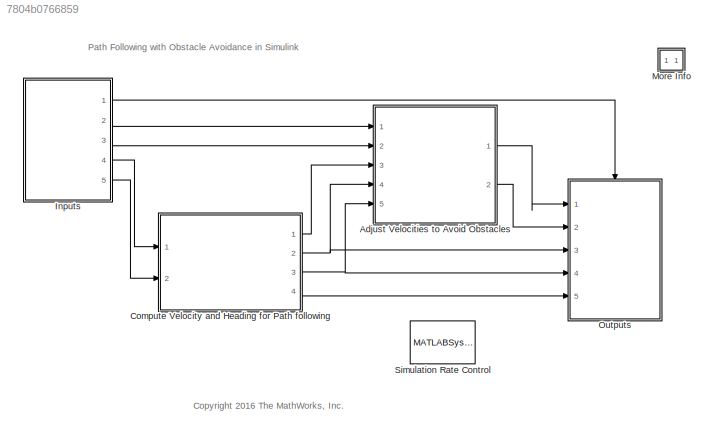
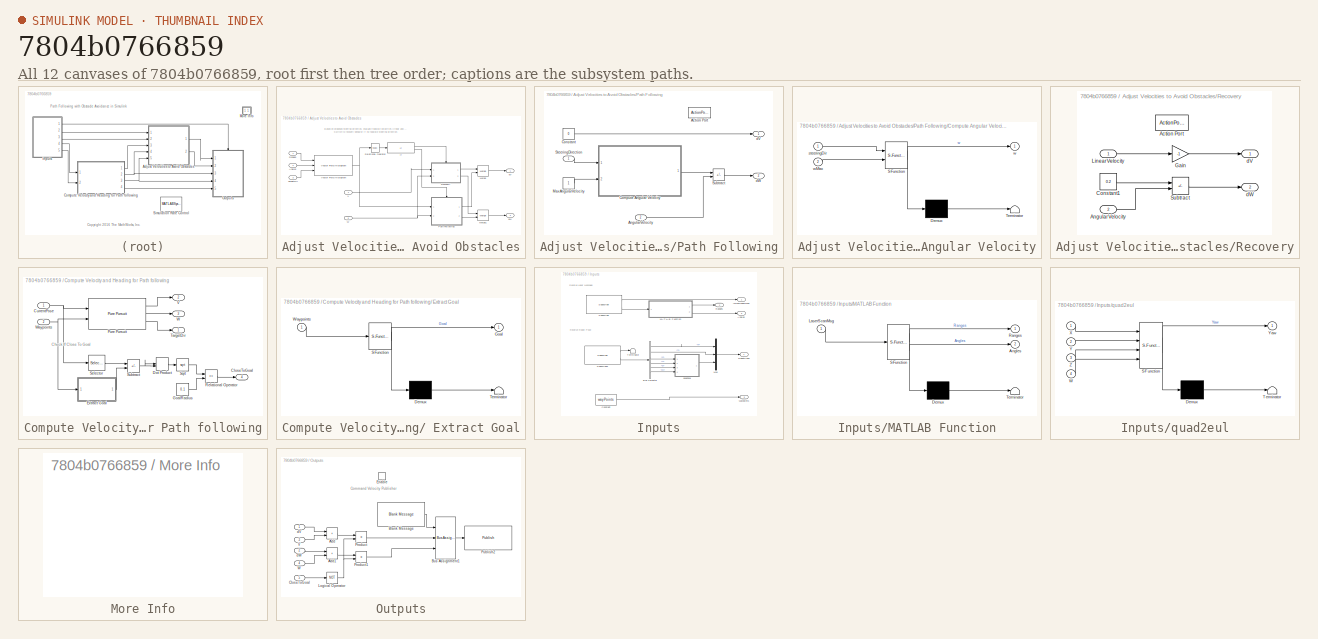
[diagram: thumbnail index - all 12 canvases of the model, root first then tree order]
MODEL slx_7804b0766859
KIND model
CONFIG AbsTol = auto
CONFIG EnableMultiTasking = on
CONFIG FixedStep = 0.01
CONFIG MaxStep = auto
CONFIG MinStep = auto
CONFIG RelTol = 1e-3
CONFIG SampleTimeConstraint = Unconstrained
CONFIG SolverName = VariableStepAuto
CONFIG StartTime = 0.0
CONFIG StopTime = inf
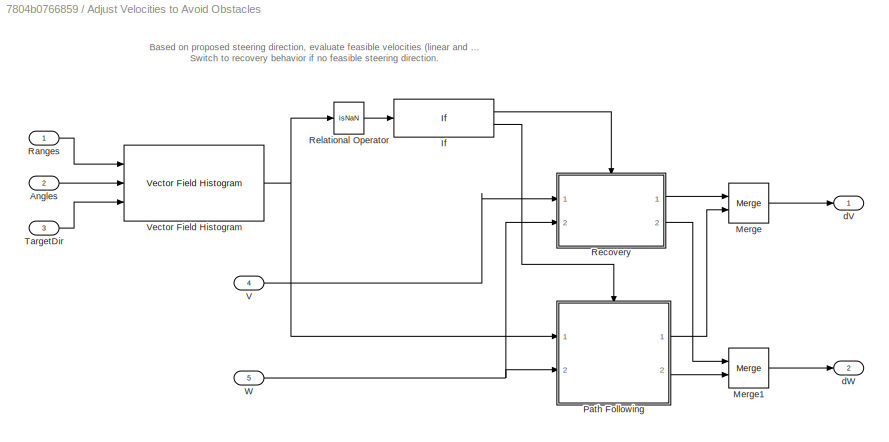
BLOCK [SubSystem] Adjust Velocities to Avoid Obstacles
  Ports = [5, 2]
  RequestExecContextInheritance = off
BLOCK [Inport] Adjust Velocities to Avoid Obstacles/Angles
  Port = 2
BLOCK [If] Adjust Velocities to Avoid Obstacles/If
  IfExpression = u1 == 1
  Ports = [1, 2]
BLOCK [Merge] Adjust Velocities to Avoid Obstacles/Merge
  Ports = [2, 1]
BLOCK [Merge] Adjust Velocities to Avoid Obstacles/Merge1
  Ports = [2, 1]
BLOCK [SubSystem] Adjust Velocities to Avoid Obstacles/Path Following
  Ports = [2, 2, 0, 0, 0, 0, 0, 1]
  RequestExecContextInheritance = off
  TreatAsAtomicUnit = on
BLOCK [ActionPort] Adjust Velocities to Avoid Obstacles/Path Following/Action Port
  ActionPortLabel = else
BLOCK [Inport] Adjust Velocities to Avoid Obstacles/Path Following/AngularVelocity
  Port = 2
BLOCK [SubSystem] Adjust Velocities to Avoid Obstacles/Path Following/Compute Angular Velocity
  ErrorFcn = Stateflow.Translate.translate
  PermitHierarchicalResolution = ExplicitOnly
  Ports = [2, 1]
  RequestExecContextInheritance = off
  SFBlockType = MATLAB Function
  TreatAsAtomicUnit = on
BLOCK [Demux] Adjust Velocities to Avoid Obstacles/Path Following/Compute Angular Velocity/ Demux 
  Outputs = 1
  Ports = [1, 1]
BLOCK [S-Function] Adjust Velocities to Avoid Obstacles/Path Following/Compute Angular Velocity/ SFunction 
  EnableBusSupport = on
  FunctionName = sf_sfun
  PortCounts = [2 2]
  Ports = [2, 2]
  SFcnIsStateOwnerBlock = off
  SFunctionDeploymentMode = off
  Tag = Stateflow S-Function 8
BLOCK [Terminator] Adjust Velocities to Avoid Obstacles/Path Following/Compute Angular Velocity/ Terminator 
BLOCK [Inport] Adjust Velocities to Avoid Obstacles/Path Following/Compute Angular Velocity/steeringDir
BLOCK [Outport] Adjust Velocities to Avoid Obstacles/Path Following/Compute Angular Velocity/w
  VectorParamsAs1DForOutWhenUnconnected = off
BLOCK [Inport] Adjust Velocities to Avoid Obstacles/Path Following/Compute Angular Velocity/wMax
  Port = 2
BLOCK [Constant] Adjust Velocities to Avoid Obstacles/Path Following/Constant
  Value = 0
BLOCK [Constant] Adjust Velocities to Avoid Obstacles/Path Following/MaxAngularVelocity
BLOCK [Inport] Adjust Velocities to Avoid Obstacles/Path Following/SteeringDirection
BLOCK [Sum] Adjust Velocities to Avoid Obstacles/Path Following/Subtract
  IconShape = rectangular
  Inputs = +-
  Ports = [2, 1]
BLOCK [Outport] Adjust Velocities to Avoid Obstacles/Path Following/dV
  VectorParamsAs1DForOutWhenUnconnected = off
BLOCK [Outport] Adjust Velocities to Avoid Obstacles/Path Following/dW
  Port = 2
  VectorParamsAs1DForOutWhenUnconnected = off
BLOCK [Inport] Adjust Velocities to Avoid Obstacles/Ranges
BLOCK [SubSystem] Adjust Velocities to Avoid Obstacles/Recovery
  Ports = [2, 2, 0, 0, 0, 0, 0, 1]
  RequestExecContextInheritance = off
  TreatAsAtomicUnit = on
BLOCK [ActionPort] Adjust Velocities to Avoid Obstacles/Recovery/Action Port
  ActionPortLabel = if(u1 == 1)
BLOCK [Inport] Adjust Velocities to Avoid Obstacles/Recovery/AngularVelocity
  Port = 2
BLOCK [Constant] Adjust Velocities to Avoid Obstacles/Recovery/Constant1
  Value = 0.2
BLOCK [Gain] Adjust Velocities to Avoid Obstacles/Recovery/Gain
  Gain = -1
BLOCK [Inport] Adjust Velocities to Avoid Obstacles/Recovery/LinearVelocity
BLOCK [Sum] Adjust Velocities to Avoid Obstacles/Recovery/Subtract
  IconShape = rectangular
  Inputs = +-
  Ports = [2, 1]
BLOCK [Outport] Adjust Velocities to Avoid Obstacles/Recovery/dV
  VectorParamsAs1DForOutWhenUnconnected = off
BLOCK [Outport] Adjust Velocities to Avoid Obstacles/Recovery/dW
  Port = 2
  VectorParamsAs1DForOutWhenUnconnected = off
BLOCK [RelationalOperator] Adjust Velocities to Avoid Obstacles/Relational Operator
  InputSameDT = off
  Operator = isNaN
  OutDataTypeStr = boolean
  Ports = [1, 1]
  RndMeth = Simplest
BLOCK [Inport] Adjust Velocities to Avoid Obstacles/TargetDir
  Port = 3
BLOCK [Inport] Adjust Velocities to Avoid Obstacles/V
  Port = 4
BLOCK [Reference] Adjust Velocities to Avoid Obstacles/Vector Field Histogram  REF=robotalgslib/Vector Field Histogram
  Ports = [3, 1]
  SourceBlock = robotalgslib/Vector Field Histogram
  SourceProductBaseCode = NV,RO
  SourceType = nav.slalgs.internal.VectorFieldHistogram
BLOCK [Inport] Adjust Velocities to Avoid Obstacles/W
  Port = 5
BLOCK [Outport] Adjust Velocities to Avoid Obstacles/dV
  VectorParamsAs1DForOutWhenUnconnected = off
BLOCK [Outport] Adjust Velocities to Avoid Obstacles/dW
  Port = 2
  VectorParamsAs1DForOutWhenUnconnected = off
BLOCK [SubSystem] Compute Velocity and Heading for Path following
  Ports = [2, 4]
  RequestExecContextInheritance = off
BLOCK [SubSystem] Compute Velocity and Heading for Path following/ Extract Goal
  ErrorFcn = Stateflow.Translate.translate
  PermitHierarchicalResolution = ExplicitOnly
  Ports = [1, 1]
  RequestExecContextInheritance = off
  SFBlockType = MATLAB Function
  TreatAsAtomicUnit = on
BLOCK [Demux] Compute Velocity and Heading for Path following/ Extract Goal/ Demux 
  Outputs = 1
  Ports = [1, 1]
BLOCK [S-Function] Compute Velocity and Heading for Path following/ Extract Goal/ SFunction 
  EnableBusSupport = on
  FunctionName = sf_sfun
  PortCounts = [1 2]
  Ports = [1, 2]
  SFcnIsStateOwnerBlock = off
  SFunctionDeploymentMode = off
  Tag = Stateflow S-Function 7
BLOCK [Terminator] Compute Velocity and Heading for Path following/ Extract Goal/ Terminator 
BLOCK [Outport] Compute Velocity and Heading for Path following/ Extract Goal/Goal
  VectorParamsAs1DForOutWhenUnconnected = off
BLOCK [Inport] Compute Velocity and Heading for Path following/ Extract Goal/Waypoints
BLOCK [Outport] Compute Velocity and Heading for Path following/CloseToGoal
  Port = 4
  VectorParamsAs1DForOutWhenUnconnected = off
BLOCK [Inport] Compute Velocity and Heading for Path following/CurrentPose
BLOCK [DotProduct] Compute Velocity and Heading for Path following/Dot Product
  OutDataTypeStr = Inherit: Inherit via internal rule
BLOCK [Constant] Compute Velocity and Heading for Path following/GoalRadius
  Value = 0.1
BLOCK [Reference] Compute Velocity and Heading for Path following/Pure Pursuit  REF=robotalgslib/Pure Pursuit
  Ports = [2, 3]
  SourceBlock = robotalgslib/Pure Pursuit
  SourceProductBaseCode = NV,RO
  SourceType = nav.slalgs.internal.PurePursuit
BLOCK [RelationalOperator] Compute Velocity and Heading for Path following/Relational Operator
  InputSameDT = off
  Operator = <=
  OutDataTypeStr = boolean
  Ports = [2, 1]
  RndMeth = Simplest
BLOCK [Selector] Compute Velocity and Heading for Path following/Selector
  IndexOptions = Index vector (dialog)
  Indices = [1 2]
  InputPortWidth = 3
  OutputSizes = 1
  Ports = [1, 1]
BLOCK [Sqrt] Compute Velocity and Heading for Path following/Sqrt
BLOCK [Sum] Compute Velocity and Heading for Path following/Subtract
  IconShape = rectangular
  Inputs = +-
  Ports = [2, 1]
BLOCK [Outport] Compute Velocity and Heading for Path following/TargetDir
  VectorParamsAs1DForOutWhenUnconnected = off
BLOCK [Outport] Compute Velocity and Heading for Path following/V
  Port = 2
  VectorParamsAs1DForOutWhenUnconnected = off
BLOCK [Outport] Compute Velocity and Heading for Path following/W
  Port = 3
  VectorParamsAs1DForOutWhenUnconnected = off
BLOCK [Inport] Compute Velocity and Heading for Path following/Waypoints
  Port = 2
BLOCK [SubSystem] Inputs
  Ports = [0, 5]
  RequestExecContextInheritance = off
BLOCK [Outport] Inputs/Angles
  Port = 3
  VectorParamsAs1DForOutWhenUnconnected = off
BLOCK [BusSelector] Inputs/Bus Selector
  OutputSignals = Pose.Pose.Position.X,Pose.Pose.Position.Y,Pose.Pose.Orientation.X,Pose.Pose.Orientation.Y,Pose.Pose.Orientation.Z,Pose.Pose.Orientation.W
  Ports = [1, 6]
BLOCK [Constant] Inputs/Constant
  Value = wayPoints
BLOCK [Outport] Inputs/IsNewLaserMsg
  VectorParamsAs1DForOutWhenUnconnected = off
BLOCK [SubSystem] Inputs/MATLAB Function
  ErrorFcn = Stateflow.Translate.translate
  PermitHierarchicalResolution = ExplicitOnly
  Ports = [1, 2]
  RequestExecContextInheritance = off
  SFBlockType = MATLAB Function
  TreatAsAtomicUnit = on
BLOCK [Demux] Inputs/MATLAB Function/ Demux 
  Outputs = 1
  Ports = [1, 1]
BLOCK [S-Function] Inputs/MATLAB Function/ SFunction 
  EnableBusSupport = on
  FunctionName = sf_sfun
  PortCounts = [1 3]
  Ports = [1, 3]
  SFcnIsStateOwnerBlock = off
  SFunctionDeploymentMode = off
  Tag = Stateflow S-Function 5
BLOCK [Terminator] Inputs/MATLAB Function/ Terminator 
BLOCK [Outport] Inputs/MATLAB Function/Angles
  Port = 2
  VectorParamsAs1DForOutWhenUnconnected = off
BLOCK [Inport] Inputs/MATLAB Function/LaserScanMsg
BLOCK [Outport] Inputs/MATLAB Function/Ranges
  VectorParamsAs1DForOutWhenUnconnected = off
BLOCK [Mux] Inputs/Mux
  DisplayOption = bar
  Inputs = 3
  Ports = [3, 1]
BLOCK [Outport] Inputs/Ranges
  Port = 2
  VectorParamsAs1DForOutWhenUnconnected = off
BLOCK [Outport] Inputs/RobotPose
  Port = 4
  VectorParamsAs1DForOutWhenUnconnected = off
BLOCK [Reference] Inputs/Subscribe  REF=robotlib/Subscribe
  Ports = [0, 2]
  SourceBlock = robotlib/Subscribe
  SourceProductBaseCode = RR
  SourceType = ROS Subscribe
BLOCK [Reference] Inputs/Subscribe1  REF=robotlib/Subscribe
  Ports = [0, 2]
  SourceBlock = robotlib/Subscribe
  SourceProductBaseCode = RR
  SourceType = ROS Subscribe
BLOCK [Terminator] Inputs/Terminator
BLOCK [Outport] Inputs/Waypoints
  Port = 5
  VectorParamsAs1DForOutWhenUnconnected = off
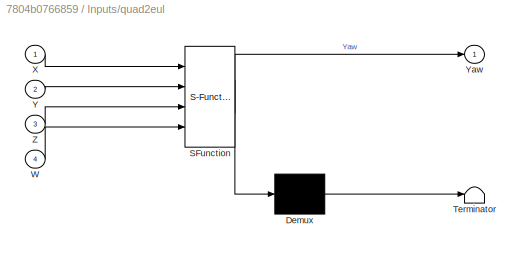
BLOCK [SubSystem] Inputs/quad2eul
  ErrorFcn = Stateflow.Translate.translate
  PermitHierarchicalResolution = ExplicitOnly
  Ports = [4, 1]
  RequestExecContextInheritance = off
  SFBlockType = MATLAB Function
  TreatAsAtomicUnit = on
BLOCK [Demux] Inputs/quad2eul/ Demux 
  Outputs = 1
  Ports = [1, 1]
BLOCK [S-Function] Inputs/quad2eul/ SFunction 
  EnableBusSupport = on
  FunctionName = sf_sfun
  PortCounts = [4 2]
  Ports = [4, 2]
  SFcnIsStateOwnerBlock = off
  SFunctionDeploymentMode = off
  Tag = Stateflow S-Function 1
BLOCK [Terminator] Inputs/quad2eul/ Terminator 
BLOCK [Inport] Inputs/quad2eul/W
  Port = 4
BLOCK [Inport] Inputs/quad2eul/X
BLOCK [Inport] Inputs/quad2eul/Y
  Port = 2
BLOCK [Outport] Inputs/quad2eul/Yaw
  VectorParamsAs1DForOutWhenUnconnected = off
BLOCK [Inport] Inputs/quad2eul/Z
  Port = 3
BLOCK [SubSystem] More Info
  OpenFcn = showdemo(bdroot(gcb))
  Ports = []
  RequestExecContextInheritance = off
BLOCK [SubSystem] Outputs
  Ports = [5, 0, 1]
  RequestExecContextInheritance = off
BLOCK [Sum] Outputs/Add
  IconShape = rectangular
  Ports = [2, 1]
BLOCK [Sum] Outputs/Add1
  IconShape = rectangular
  Ports = [2, 1]
BLOCK [Reference] Outputs/Blank Message  REF=robotlib/Blank Message
  Ports = [0, 1]
  SourceBlock = robotlib/Blank Message
  SourceProductBaseCode = RR
  SourceType = ROS Blank Message
BLOCK [BusAssignment] Outputs/Bus Assignment1
  AssignedSignals = Linear.X,Angular.Z
  DialogController = Simulink.DDGSource_BusAssignment
  Ports = [3, 1]
BLOCK [Inport] Outputs/CloseToGoal
  Port = 5
BLOCK [EnablePort] Outputs/Enable
  Ports = []
BLOCK [Logic] Outputs/Logical Operator
  AllPortsSameDT = off
  Operator = NOT
  OutDataTypeStr = boolean
  Ports = [1, 1]
BLOCK [Product] Outputs/Product
  Ports = [2, 1]
BLOCK [Product] Outputs/Product1
  Ports = [2, 1]
BLOCK [Reference] Outputs/Publish2  REF=robotlib/Publish
  AttributesFormatString = %<messageType>
  Ports = [1]
  SourceBlock = robotlib/Publish
  SourceProductBaseCode = RR
  SourceType = ROS Publish
BLOCK [Inport] Outputs/V
  Port = 3
BLOCK [Inport] Outputs/W
  Port = 4
BLOCK [Inport] Outputs/dV
BLOCK [Inport] Outputs/dW
  Port = 2
BLOCK [MATLABSystem] Simulation Rate Control
  MaskDisplay = disp('Rate Control');
  MaskType = ExampleHelperSimulationRateControl
  Ports = []
  SampleTime = 0.02
  System = ExampleHelperSimulationRateControl
ANNOTATION (root): Path Following with Obstacle Avoidance in Simulink
ANNOTATION (root): <copyright redacted>
ANNOTATION Adjust Velocities to Avoid Obstacles: Based on proposed steering direction, evaluate feasible velocities (linear and angular). Switch to recovery behavior if no feasible steering direction.
ANNOTATION Compute Velocity and Heading for Path following: Check If Close To Goal
ANNOTATION Inputs: Receive Laser Message
ANNOTATION Inputs: Receive Robot Pose
ANNOTATION Outputs: Command Velocity Publisher
LINE Adjust Velocities to Avoid Obstacles/Angles:1 -> Adjust Velocities to Avoid Obstacles/Vector Field Histogram:2
LINE Adjust Velocities to Avoid Obstacles/If:1 -> Adjust Velocities to Avoid Obstacles/Recovery:ifaction
LINE Adjust Velocities to Avoid Obstacles/If:2 -> Adjust Velocities to Avoid Obstacles/Path Following:ifaction
LINE Adjust Velocities to Avoid Obstacles/Merge1:1 -> Adjust Velocities to Avoid Obstacles/dW:1
LINE Adjust Velocities to Avoid Obstacles/Merge:1 -> Adjust Velocities to Avoid Obstacles/dV:1
LINE Adjust Velocities to Avoid Obstacles/Path Following/AngularVelocity:1 -> Adjust Velocities to Avoid Obstacles/Path Following/Subtract:2
LINE Adjust Velocities to Avoid Obstacles/Path Following/Compute Angular Velocity:1 -> Adjust Velocities to Avoid Obstacles/Path Following/Subtract:1
LINE Adjust Velocities to Avoid Obstacles/Path Following/Constant:1 -> Adjust Velocities to Avoid Obstacles/Path Following/dV:1
LINE Adjust Velocities to Avoid Obstacles/Path Following/MaxAngularVelocity:1 -> Adjust Velocities to Avoid Obstacles/Path Following/Compute Angular Velocity:2
LINE Adjust Velocities to Avoid Obstacles/Path Following/SteeringDirection:1 -> Adjust Velocities to Avoid Obstacles/Path Following/Compute Angular Velocity:1
LINE Adjust Velocities to Avoid Obstacles/Path Following/Subtract:1 -> Adjust Velocities to Avoid Obstacles/Path Following/dW:1
LINE Adjust Velocities to Avoid Obstacles/Path Following:1 -> Adjust Velocities to Avoid Obstacles/Merge:2
LINE Adjust Velocities to Avoid Obstacles/Path Following:2 -> Adjust Velocities to Avoid Obstacles/Merge1:2
LINE Adjust Velocities to Avoid Obstacles/Ranges:1 -> Adjust Velocities to Avoid Obstacles/Vector Field Histogram:1
LINE Adjust Velocities to Avoid Obstacles/Recovery/AngularVelocity:1 -> Adjust Velocities to Avoid Obstacles/Recovery/Subtract:2
LINE Adjust Velocities to Avoid Obstacles/Recovery/Constant1:1 -> Adjust Velocities to Avoid Obstacles/Recovery/Subtract:1
LINE Adjust Velocities to Avoid Obstacles/Recovery/Gain:1 -> Adjust Velocities to Avoid Obstacles/Recovery/dV:1
LINE Adjust Velocities to Avoid Obstacles/Recovery/LinearVelocity:1 -> Adjust Velocities to Avoid Obstacles/Recovery/Gain:1
LINE Adjust Velocities to Avoid Obstacles/Recovery/Subtract:1 -> Adjust Velocities to Avoid Obstacles/Recovery/dW:1
LINE Adjust Velocities to Avoid Obstacles/Recovery:1 -> Adjust Velocities to Avoid Obstacles/Merge:1
LINE Adjust Velocities to Avoid Obstacles/Recovery:2 -> Adjust Velocities to Avoid Obstacles/Merge1:1
LINE Adjust Velocities to Avoid Obstacles/Relational Operator:1 -> Adjust Velocities to Avoid Obstacles/If:1
LINE Adjust Velocities to Avoid Obstacles/TargetDir:1 -> Adjust Velocities to Avoid Obstacles/Vector Field Histogram:3
LINE Adjust Velocities to Avoid Obstacles/V:1 -> Adjust Velocities to Avoid Obstacles/Recovery:1
NET Adjust Velocities to Avoid Obstacles/Vector Field Histogram:1 -> Adjust Velocities to Avoid Obstacles/Path Following:1, Adjust Velocities to Avoid Obstacles/Relational Operator:1
NET Adjust Velocities to Avoid Obstacles/W:1 -> Adjust Velocities to Avoid Obstacles/Path Following:2, Adjust Velocities to Avoid Obstacles/Recovery:2
LINE Adjust Velocities to Avoid Obstacles:1 -> Outputs:1
LINE Adjust Velocities to Avoid Obstacles:2 -> Outputs:2
LINE Compute Velocity and Heading for Path following/ Extract Goal:1 -> Compute Velocity and Heading for Path following/Subtract:2
NET Compute Velocity and Heading for Path following/CurrentPose:1 -> Compute Velocity and Heading for Path following/Pure Pursuit:1, Compute Velocity and Heading for Path following/Selector:1
LINE Compute Velocity and Heading for Path following/Dot Product:1 -> Compute Velocity and Heading for Path following/Sqrt:1
LINE Compute Velocity and Heading for Path following/GoalRadius:1 -> Compute Velocity and Heading for Path following/Relational Operator:2
LINE Compute Velocity and Heading for Path following/Pure Pursuit:1 -> Compute Velocity and Heading for Path following/V:1
LINE Compute Velocity and Heading for Path following/Pure Pursuit:2 -> Compute Velocity and Heading for Path following/W:1
LINE Compute Velocity and Heading for Path following/Pure Pursuit:3 -> Compute Velocity and Heading for Path following/TargetDir:1
LINE Compute Velocity and Heading for Path following/Relational Operator:1 -> Compute Velocity and Heading for Path following/CloseToGoal:1
LINE Compute Velocity and Heading for Path following/Selector:1 -> Compute Velocity and Heading for Path following/Subtract:1
LINE Compute Velocity and Heading for Path following/Sqrt:1 -> Compute Velocity and Heading for Path following/Relational Operator:1
NET Compute Velocity and Heading for Path following/Subtract:1 -> Compute Velocity and Heading for Path following/Dot Product:1, Compute Velocity and Heading for Path following/Dot Product:2
NET Compute Velocity and Heading for Path following/Waypoints:1 -> Compute Velocity and Heading for Path following/ Extract Goal:1, Compute Velocity and Heading for Path following/Pure Pursuit:2
LINE Compute Velocity and Heading for Path following:1 -> Adjust Velocities to Avoid Obstacles:3
NET Compute Velocity and Heading for Path following:2 -> Adjust Velocities to Avoid Obstacles:4, Outputs:3
NET Compute Velocity and Heading for Path following:3 -> Adjust Velocities to Avoid Obstacles:5, Outputs:4
LINE Compute Velocity and Heading for Path following:4 -> Outputs:5
LINE Inputs/Bus Selector:1 -> Inputs/Mux:1
LINE Inputs/Bus Selector:2 -> Inputs/Mux:2
LINE Inputs/Bus Selector:3 -> Inputs/quad2eul:1
LINE Inputs/Bus Selector:4 -> Inputs/quad2eul:2
LINE Inputs/Bus Selector:5 -> Inputs/quad2eul:3
LINE Inputs/Bus Selector:6 -> Inputs/quad2eul:4
LINE Inputs/Constant:1 -> Inputs/Waypoints:1
LINE Inputs/MATLAB Function:1 -> Inputs/Ranges:1
LINE Inputs/MATLAB Function:2 -> Inputs/Angles:1
LINE Inputs/Mux:1 -> Inputs/RobotPose:1
LINE Inputs/Subscribe1:1 -> Inputs/Terminator:1
LINE Inputs/Subscribe1:2 -> Inputs/Bus Selector:1
LINE Inputs/Subscribe:1 -> Inputs/IsNewLaserMsg:1
LINE Inputs/Subscribe:2 -> Inputs/MATLAB Function:1
LINE Inputs/quad2eul:1 -> Inputs/Mux:3
LINE Inputs:1 -> Outputs:enable
LINE Inputs:2 -> Adjust Velocities to Avoid Obstacles:1
LINE Inputs:3 -> Adjust Velocities to Avoid Obstacles:2
LINE Inputs:4 -> Compute Velocity and Heading for Path following:1
LINE Inputs:5 -> Compute Velocity and Heading for Path following:2
LINE Outputs/Add1:1 -> Outputs/Product1:1
LINE Outputs/Add:1 -> Outputs/Product:1
LINE Outputs/Blank Message:1 -> Outputs/Bus Assignment1:1
LINE Outputs/Bus Assignment1:1 -> Outputs/Publish2:1
LINE Outputs/CloseToGoal:1 -> Outputs/Logical Operator:1
NET Outputs/Logical Operator:1 -> Outputs/Product1:2, Outputs/Product:2
LINE Outputs/Product1:1 -> Outputs/Bus Assignment1:3
LINE Outputs/Product:1 -> Outputs/Bus Assignment1:2
LINE Outputs/V:1 -> Outputs/Add:2
LINE Outputs/W:1 -> Outputs/Add1:2
LINE Outputs/dV:1 -> Outputs/Add:1
LINE Outputs/dW:1 -> Outputs/Add1:1
note: NET lines group one-source signal fan-out (src -> all destinations, sorted); 1:1 wires keep LINE
CHART Inputs/quad2eul states=1 transitions=1
  STATE_LABEL 'eML_blk_kernel()'
  STATE_LABEL 'SCRIPT:\nfunction Yaw = quat2eulBlk(X, Y, Z, W)\n%#codegen\n\neularAngles = quat2eul([W, X, Y, Z]);\nYaw = eularAngles(1);'
CHART Inputs/MATLAB Function states=1 transitions=1
  STATE_LABEL 'eML_blk_kernel()'
  STATE_LABEL 'SCRIPT:\nfunction [Ranges, Angles] = ExtractRangeData(LaserScanMsg)\n%#codegen\ni=1;\nwhile i<129\n   % Extract Range information\n   Ranges = double(LaserScanMsg.Ranges);\n   i=i+1;\nend\n% Construct Angles vector using AngleMin and AngleIncrement from sensor\n% reading.\nangMin = double(LaserScanMsg.AngleMin);\nangIncrement = double(LaserScanMsg.AngleIncrement);\n\nnumReadings = numel(Ranges);\nrawAngles = ang...<+141ch>'
CHART Compute Velocity and Heading for Path following/ Extract Goal states=1 transitions=1
  STATE_LABEL 'eML_blk_kernel()'
  STATE_LABEL 'SCRIPT:\nfunction Goal = extractGoal(Waypoints)\n%#codegen\nb = isnan(Waypoints);\n[rows,~] = find(b);\nridx = setdiff(1:size(Waypoints,1), sort(rows));\nGoal = [Waypoints(ridx(end), 1) Waypoints(ridx(end), 2)];'
CHART Adjust Velocities to Avoid Obstacles/Path Following/Compute Angular Velocity states=1 transitions=1
  STATE_LABEL 'eML_blk_kernel()'
  STATE_LABEL "SCRIPT:\nfunction w = exampleHelperComputeAngularVelocity(steeringDir, wMax)\n%EXAMPLEHELPERCOMPUTEANGULARVELOCITY Compute angular velocity\n%   W = exampleHelperComputeAngularVelocity(STEERINGDIR)\n%   returns the angular velocity W for a differential drive robot in radians\n%   per second for a given steering direction STEERINGDIR in the robot's\n%   coordinate frame in radians.\n%\n%   W = exampleHelpe...<+1444ch>"
CHART  states=0 transitions=0
CHART  states=0 transitions=0
CHART  states=0 transitions=0
CHART  states=0 transitions=0
